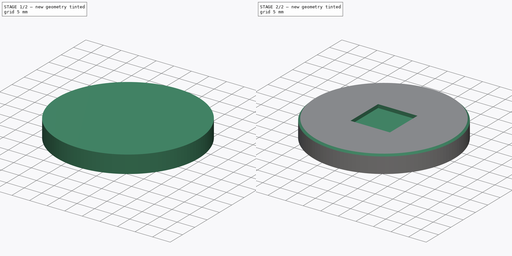
[diagram: build sequence overview — one tinted view per stage of 2, left to right]
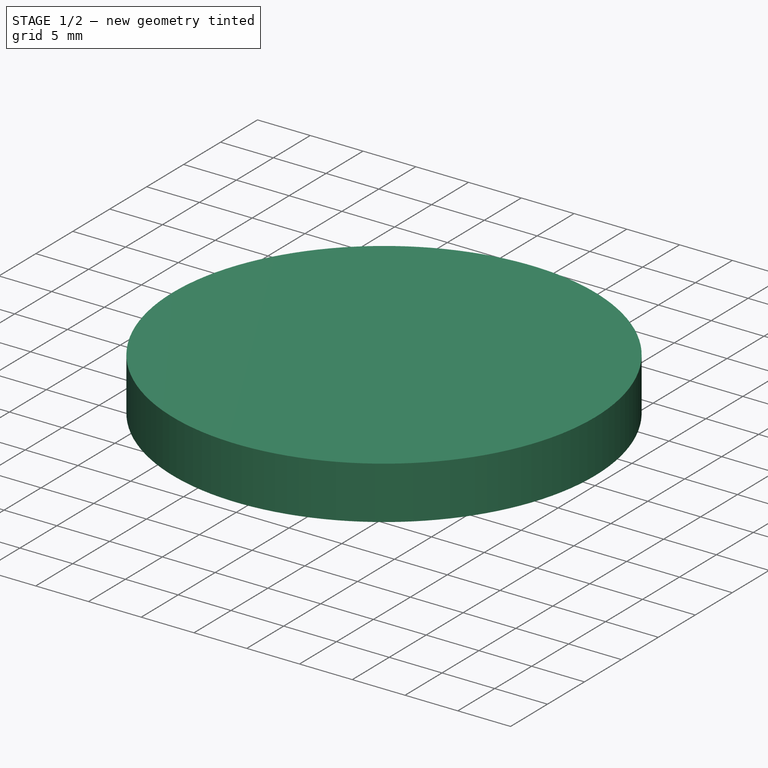
[diagram: stage 1 of 2 — iso view after this stage's code; geometry added in this stage tinted green]
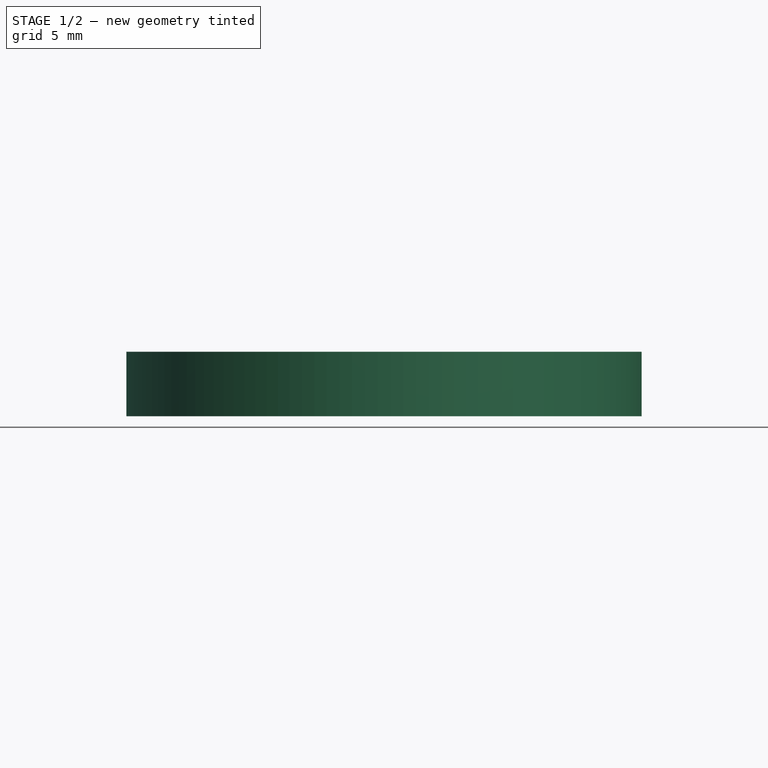
[diagram: stage 1 of 2 — front view after this stage's code; geometry added in this stage tinted green]
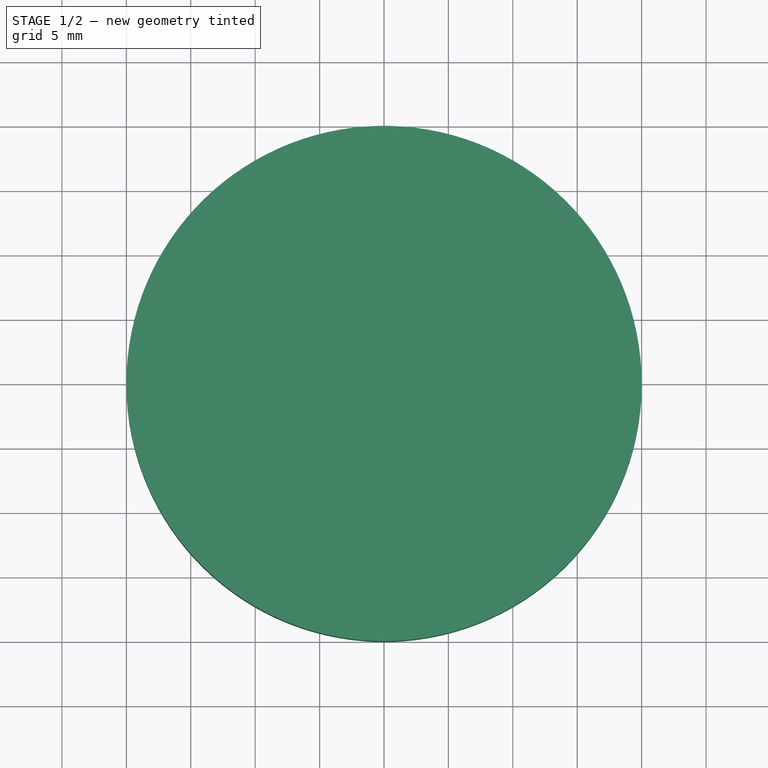
[diagram: stage 1 of 2 — top view after this stage's code; geometry added in this stage tinted green]
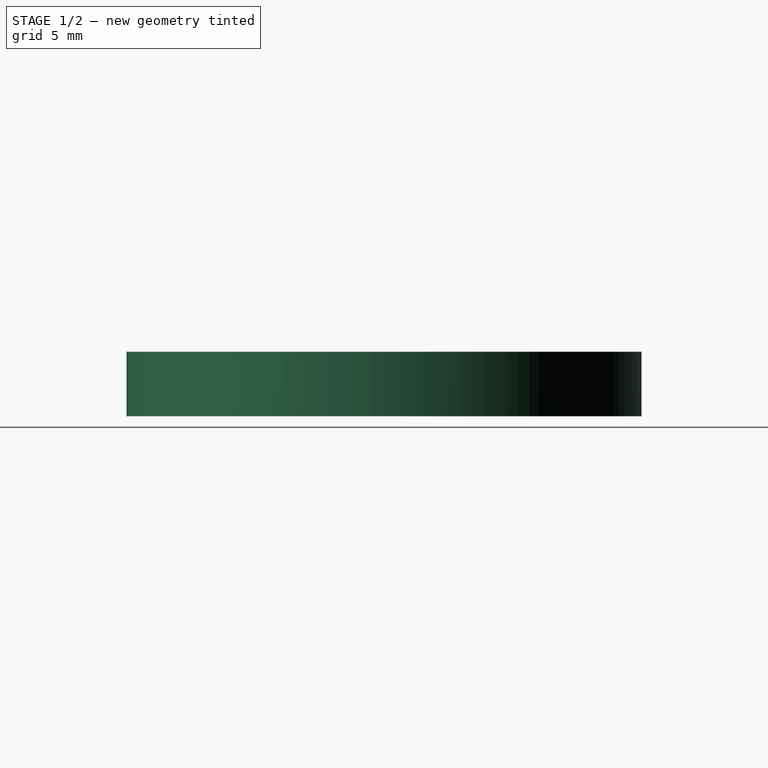
[diagram: stage 1 of 2 — right view after this stage's code; geometry added in this stage tinted green]
FCSTD DOCUMENT  (FreeCAD 0.20RUnknown)
Label: sample holder
License: All rights reserved
LicenseURL: http://en.wikipedia.org/wiki/All_rights_reserved
objects: Sketcher::SketchObject×3, PartDesign::Plane×2, PartDesign::Pocket×2, Spreadsheet::Sheet×1, PartDesign::Pad×1, PartDesign::Chamfer×1, PartDesign::Body×1
note: 14 computed .brp shape members not serialized (recipe doc carries the construction recipe); baked Part::Feature solids carry a one-line shape summary decoded from their .brp

FEATURE [Sketcher::SketchObject] Sketch
  FullyConstrained = true
  MapMode = 5
  Support = -> [XY_Plane]
  expr: Constraints[20] = 11.63 - <<Params>>.tolerance
  expr: Constraints[22] = 11.63 - <<Params>>.tolerance
  expr: Constraints[24] = 17.3 + <<Params>>.tolerance
  sketch-geometry (11):
    g0: ArcOfCircle CenterX=-6.55 CenterY=6.55 CenterZ=0 NormalX=0 NormalY=0 NormalZ=1 AngleXU=0 Radius=5 StartAngle=1.5708 EndAngle=3.14159
    g1: LineSegment StartX=-6.55 StartY=11.55 StartZ=0 EndX=6.55 EndY=11.55 EndZ=0
    g2: ArcOfCircle CenterX=6.55 CenterY=6.55 CenterZ=0 NormalX=0 NormalY=0 NormalZ=1 AngleXU=0 Radius=5 StartAngle=2e-16 EndAngle=1.5708
    g3: LineSegment StartX=11.55 StartY=6.55 StartZ=0 EndX=11.55 EndY=-6.55 EndZ=0
    g4: ArcOfCircle CenterX=6.55 CenterY=-6.55 CenterZ=0 NormalX=0 NormalY=0 NormalZ=1 AngleXU=0 Radius=5 StartAngle=4.71239 EndAngle=6.28319
    g5: LineSegment StartX=6.55 StartY=-11.55 StartZ=0 EndX=-6.55 EndY=-11.55 EndZ=0
    g6: ArcOfCircle CenterX=-6.55 CenterY=-6.55 CenterZ=0 NormalX=0 NormalY=0 NormalZ=1 AngleXU=0 Radius=5 StartAngle=3.14159 EndAngle=4.71239
    g7: LineSegment StartX=-11.55 StartY=-6.55 StartZ=0 EndX=-11.55 EndY=6.55 EndZ=0
    g8: GeomPoint X=-11.55 Y=11.55 Z=0
    g9: GeomPoint X=11.55 Y=-11.55 Z=0
    g10: Circle CenterX=0 CenterY=0 CenterZ=0 NormalX=0 NormalY=0 NormalZ=1 AngleXU=0 Radius=17.38
  constraints (25):
    c: Tangent(g0,g1) = 1.5708
    c: Tangent(g1,g2) = 1.5708
    c: Tangent(g2,g3) = 1.5708
    c: Tangent(g3,g4) = 1.5708
    c: Tangent(g4,g5) = 1.5708
    c: Tangent(g5,g6) = 1.5708
    c: Tangent(g6,g7) = 1.5708
    c: Tangent(g7,g0) = 1.5708
    c: Horizontal(g1)
    c: Horizontal(g5)
    c: Vertical(g3)
    c: Vertical(g7)
    c: Equal(g0,g2)
    c: Equal(g2,g4)
    c: Equal(g4,g6)
    c: PointOnObject(g8,g1)
    c: PointOnObject(g8,g7)
    c: PointOnObject(g9,g3)
    c: PointOnObject(g9,g5)
    c: Radius(g0) = 5
    c: DistanceX(g0,g-1) = 11.55
    c: Symmetric(g0,g3,g-1)
    c: DistanceY(g-1,g0) = 11.55
    c: Coincident(g10,g-1)
    c: Radius(g10) = 17.38
FEATURE [PartDesign::Plane] DatumPlane001  label="lock_plane"
  AttachmentOffset = pos=(0,0,3) rot=(0,0,1;0rad)
  Length = 60
  MapMode = 5
  Placement = pos=(0,0,3) rot=(0,0,1;0rad)
  ResizeMode = 0
  Support = -> [XY_Plane]
  Width = 60
  expr: .AttachmentOffset.Base.z = <<Params>>.holder_lock_height
FEATURE [Spreadsheet::Sheet] Spreadsheet  label="Params"
  cells = A1=holder_height; B1(holder_height)=5; A2=holder_side_length; B2(holder_side_length)=30; A3=holder_notch_chamfer; B3(holder_notch_chamfer)==B4 < B1 ? B4 : B1 - 0.1; A4=holder_alignment_notch_length; B4(holder_alignment_notch_length)=2.5; A5=holder_bottom_chamfer; B5(holder_bottom_chamfer)==B1 < 0.5 ? B1 - 0.1 : 0.5; A6=holder_lock_height; B6(holder_lock_height)=3; A8=TOLERANCE; B8(tolerance)=0.08
FEATURE [Sketcher::SketchObject] Sketch001
  FullyConstrained = true
  MapMode = 5
  Support = -> [XY_Plane]
  sketch-geometry (1):
    g0: Circle CenterX=0 CenterY=0 CenterZ=0 NormalX=0 NormalY=0 NormalZ=1 AngleXU=0 Radius=20
  constraints (2):
    c: Coincident(g0,g-1)
    c: Radius(g0) = 20
FEATURE [PartDesign::Pad] Pad
  Direction = (0,0,1)
  Length = 5
  Length2 = 10
  Profile = -> Sketch001
  ReferenceAxis = -> Sketch001 [N_Axis]
  Refine = true
  Type = 0
  expr: Length = <<Params>>.holder_height
FEATURE [PartDesign::Pocket] Pocket
  BaseFeature = -> Pad
  Direction = (0,0,-1)
  Length = 3
  Length2 = 5
  Profile = -> Sketch
  ReferenceAxis = -> Sketch [N_Axis]
  Refine = true
  Reversed = true
  Type = 0
  expr: Length = <<Params>>.holder_lock_height
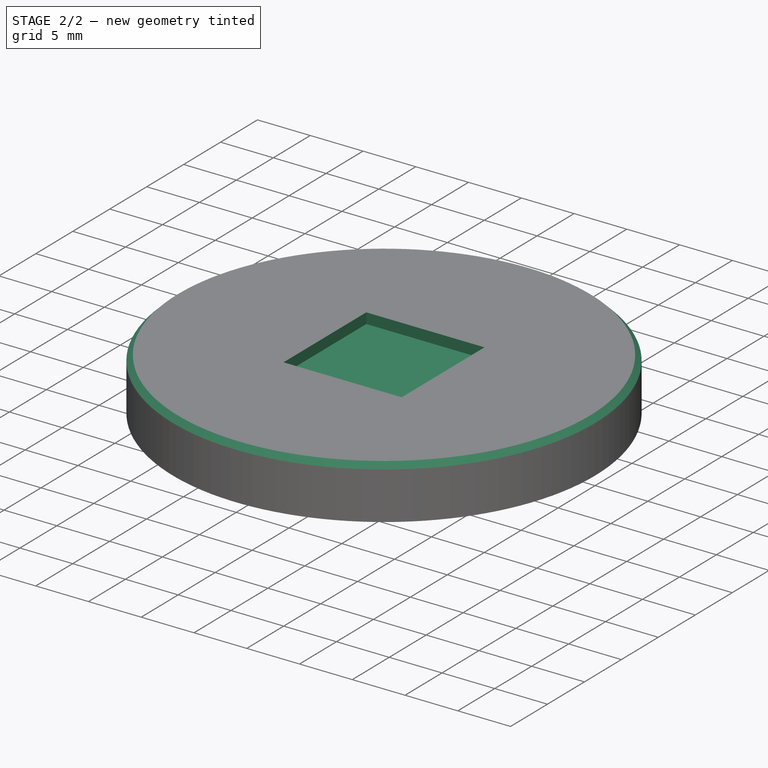
[diagram: stage 2 of 2 — iso view after this stage's code; geometry added in this stage tinted green]
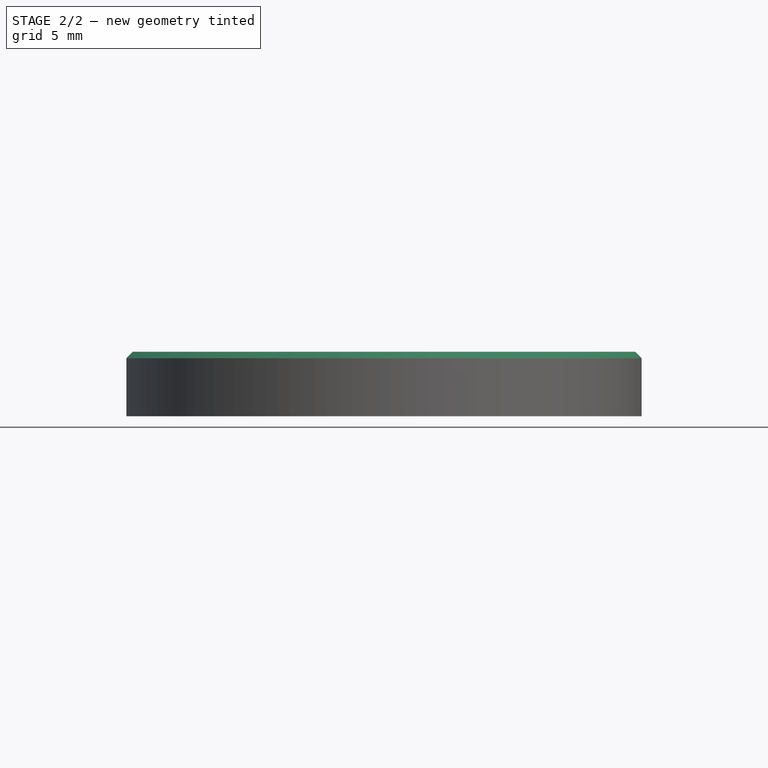
[diagram: stage 2 of 2 — front view after this stage's code; geometry added in this stage tinted green]
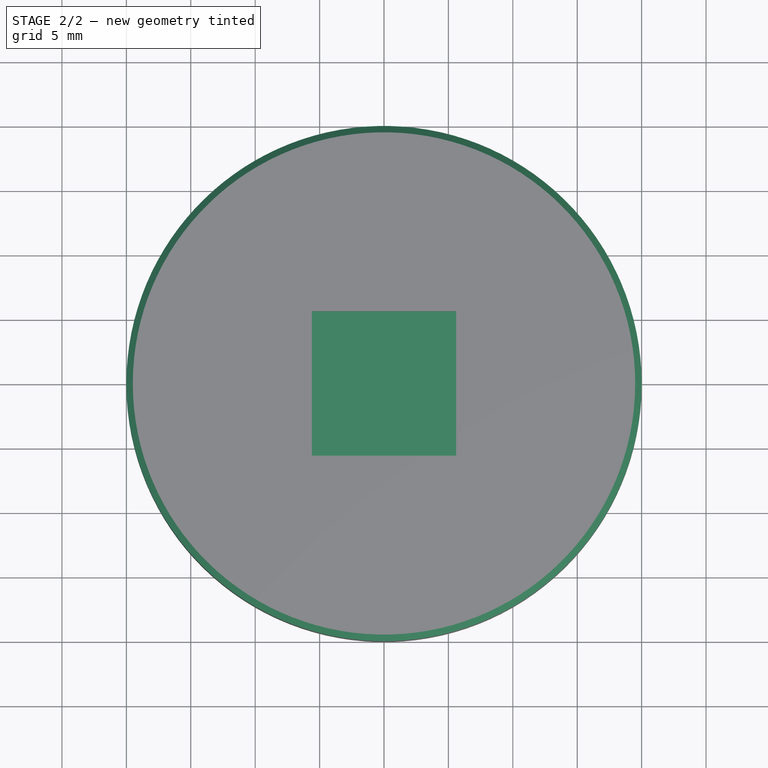
[diagram: stage 2 of 2 — top view after this stage's code; geometry added in this stage tinted green]
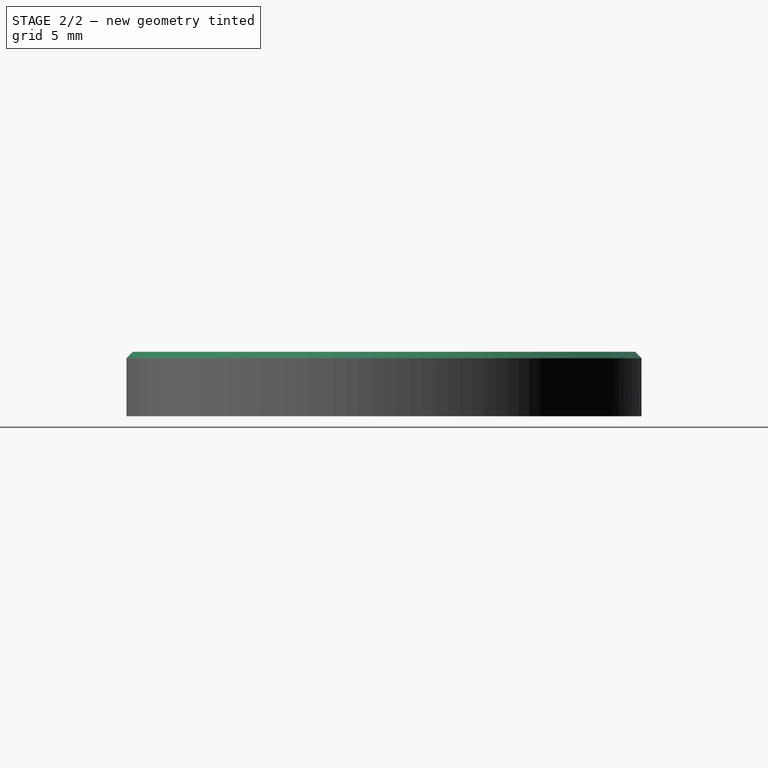
[diagram: stage 2 of 2 — right view after this stage's code; geometry added in this stage tinted green]
FEATURE [PartDesign::Chamfer] Chamfer
  Angle = 45
  Base = -> Pocket [Edge30,Edge29,Edge27,Edge25,Edge23,Edge21,Edge19,Edge17,Edge4,Edge3]
  BaseFeature = -> Pocket
  ChamferType = 0
  FlipDirection = false
  Size = 0.5
  Size2 = 1
  SupportTransform = false
  UseAllEdges = false
FEATURE [PartDesign::Plane] DatumPlane  label="SAMPLE SKETCH PLANE"
  AttachmentOffset = pos=(0,0,5) rot=(0,0,1;0rad)
  Length = 60
  MapMode = 5
  Placement = pos=(0,0,5) rot=(0,0,1;0rad)
  ResizeMode = 0
  Support = -> [XY_Plane]
  Width = 60
  expr: .AttachmentOffset.Base.z = <<Params>>.holder_height
FEATURE [Sketcher::SketchObject] Sketch002  label="SAMPLE SKETCH"
  FullyConstrained = true
  MapMode = 5
  Placement = pos=(0,0,5) rot=(0,0,1;0rad)
  Support = -> [DatumPlane]
  sketch-geometry (5):
    g0: LineSegment StartX=5.6 StartY=-5.6 StartZ=0 EndX=5.6 EndY=5.6 EndZ=0
    g1: LineSegment StartX=5.6 StartY=5.6 StartZ=0 EndX=-5.6 EndY=5.6 EndZ=0
    g2: LineSegment StartX=-5.6 StartY=5.6 StartZ=0 EndX=-5.6 EndY=-5.6 EndZ=0
    g3: LineSegment StartX=-5.6 StartY=-5.6 StartZ=0 EndX=5.6 EndY=-5.6 EndZ=0
    g4: GeomPoint X=0 Y=0 Z=0
  constraints (12):
    c: Coincident(g0,g1)
    c: Coincident(g1,g2)
    c: Coincident(g2,g3)
    c: Coincident(g3,g0)
    c: Horizontal(g1)
    c: Horizontal(g3)
    c: Vertical(g0)
    c: Vertical(g2)
    c: Symmetric(g1,g0,g4)
    c: Coincident(g4,g-1)
    c: Equal(g2,g1)
    c: DistanceX(g1,g1) = 11.2
FEATURE [PartDesign::Pocket] Pocket001  label="SAMPLE POCKET"
  BaseFeature = -> Chamfer
  Direction = (0,0,-1)
  Length = 1
  Length2 = 5
  Profile = -> Sketch002
  ReferenceAxis = -> Sketch002 [N_Axis]
  Type = 0
FEATURE [PartDesign::Body] Body  label="Sample  holder"
  Group = -> [Sketch001,Sketch,DatumPlane001,Pad,Pocket,Chamfer,DatumPlane,Sketch002,Pocket001]
  Origin = -> Origin
  Tip = -> Pocket001
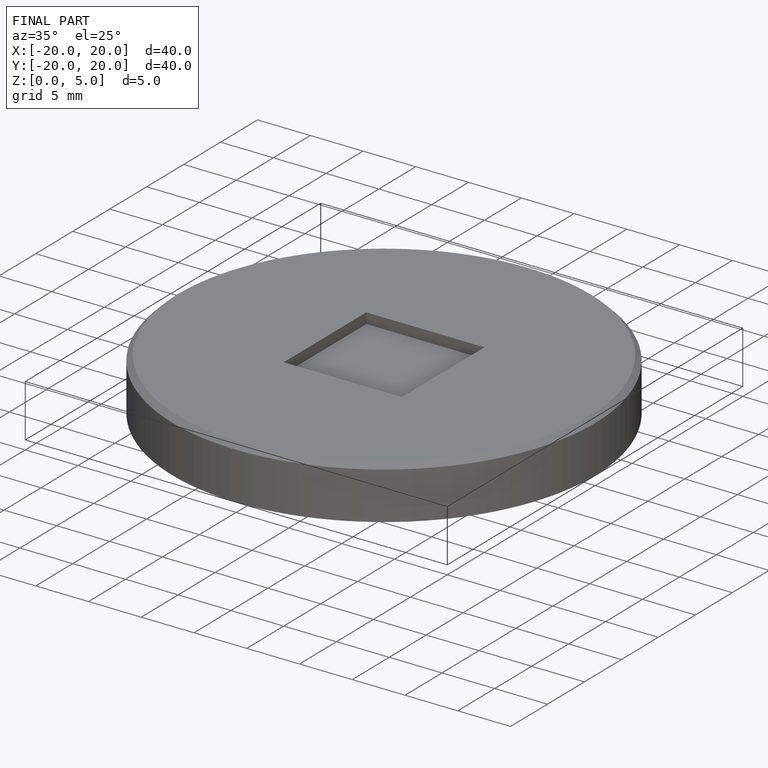
[diagram: finished part — iso view with bounding-box wireframe]
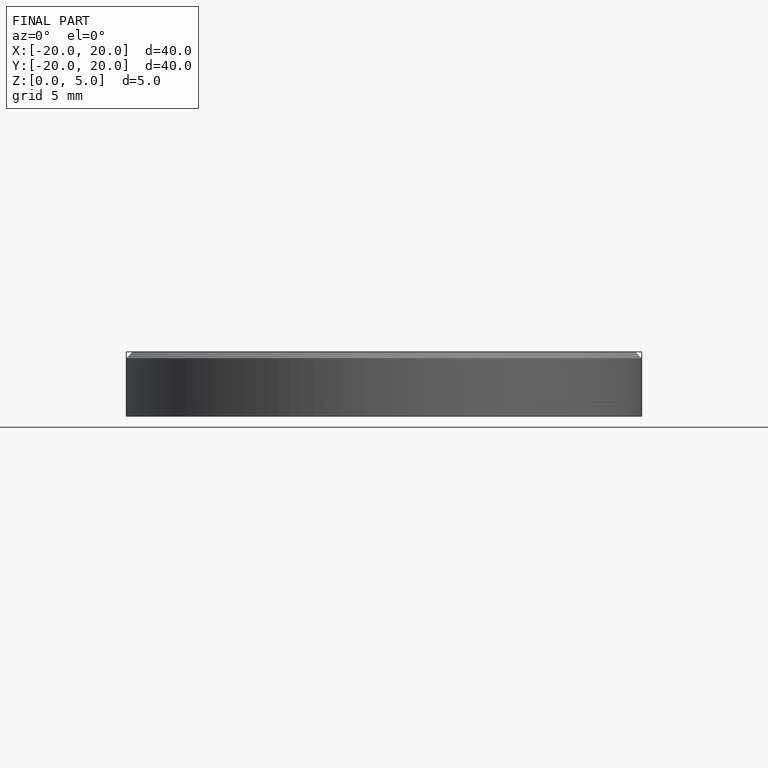
[diagram: finished part — front view with bounding-box wireframe]
